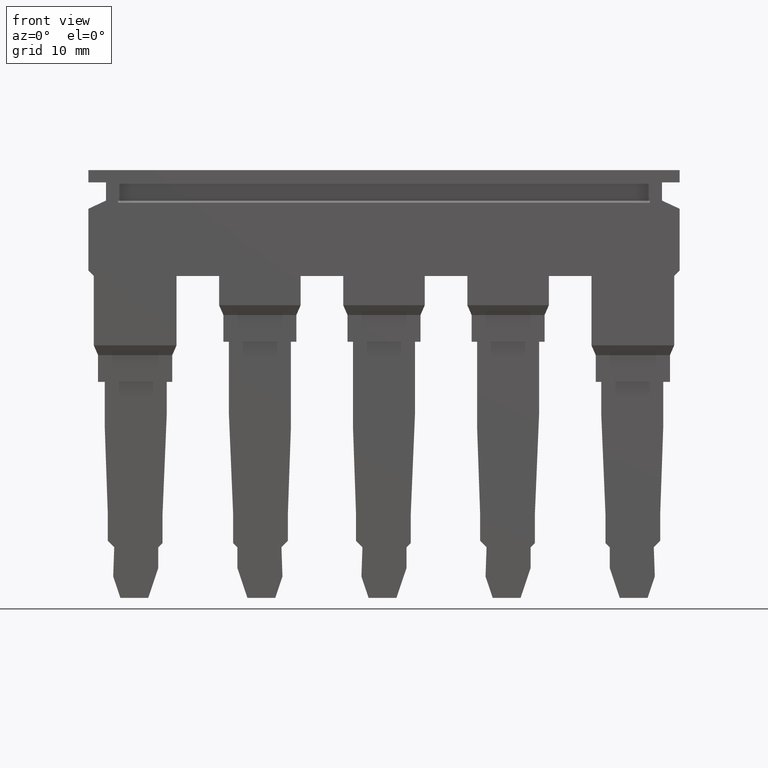
[diagram: clean part render]
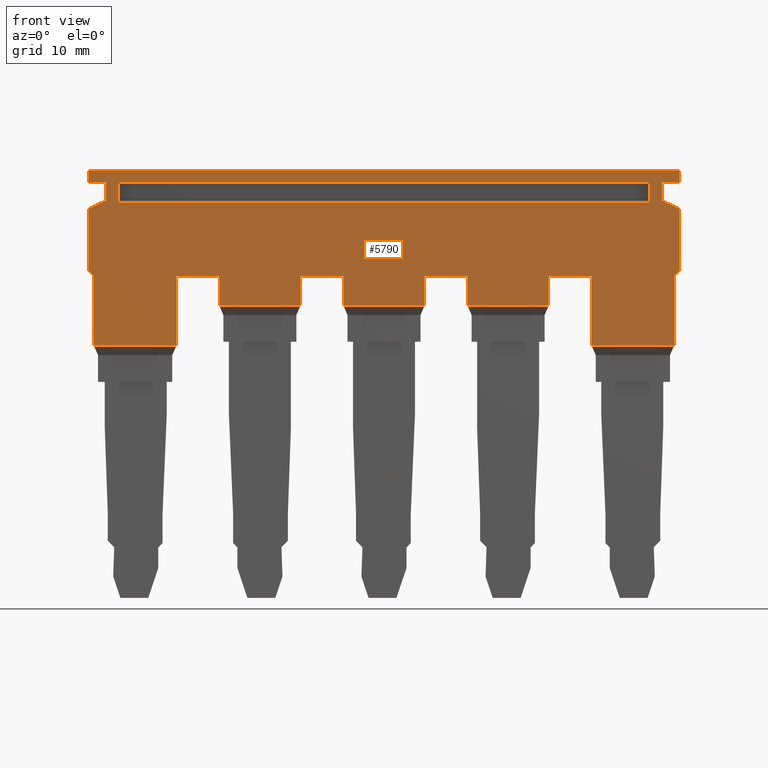
[diagram: same view with one face highlighted and labeled with its STEP entity id]
A machine part, front view. The second image highlights one B-rep face of the part: STEP entity #5790.
In plain terms, the highlighted planar face has unit normal (-0, -1, 0).
Its self-contained STEP definition (entity closure, byte-faithful):
#2940=CARTESIAN_POINT('',(-6.40000000031967,24.5659443926166,
4.25737639386843));
#2950=DIRECTION('',(-1.,1.74939901767895E-11,-1.11022302460423E-16));
#2960=DIRECTION('',(-1.74939901767895E-11,-1.,-9.71111534323598E-28));
#2970=AXIS2_PLACEMENT_3D('',#2940,#2950,#2960);
#2980=PLANE('',#2970);
#2990=CARTESIAN_POINT('',(-6.40000000005842,39.4999997693668,9.075));
#3000=DIRECTION('',(1.74939901767895E-11,1.,-6.12323399603084E-17));
#3010=VECTOR('',#3000,1.);
#3020=LINE('',#2990,#3010);
#3030=CARTESIAN_POINT('',(-6.40000000006716,38.9999997693944,9.075));
#3040=VERTEX_POINT('',#3030);
#3050=CARTESIAN_POINT('',(-6.40000000004967,39.9999997693944,9.075));
#3060=VERTEX_POINT('',#3050);
#3070=EDGE_CURVE('',#3040,#3060,#3020,.T.);
#3080=ORIENTED_EDGE('',*,*,#3070,.T.);
#3090=CARTESIAN_POINT('',(-6.40000000006716,38.9999997693944,-15.225));
#3100=DIRECTION('',(-1.11022302459352E-16,6.12323399568821E-17,1.));
#3110=VECTOR('',#3100,1.);
#3120=LINE('',#3090,#3110);
#3130=CARTESIAN_POINT('',(-6.40000000006716,38.9999997693944,7.625));
#3140=VERTEX_POINT('',#3130);
#3150=EDGE_CURVE('',#3140,#3040,#3120,.T.);
#3160=ORIENTED_EDGE('',*,*,#3150,.T.);
#3170=CARTESIAN_POINT('',(-6.40000000005842,39.4999997693668,7.625));
#3180=DIRECTION('',(1.74939901767895E-11,1.,-6.12323399603084E-17));
#3190=VECTOR('',#3180,1.);
#3200=LINE('',#3170,#3190);
#3210=CARTESIAN_POINT('',(-6.4000000000934,37.4999997693944,7.625));
#3220=VERTEX_POINT('',#3210);
#3230=EDGE_CURVE('',#3220,#3140,#3200,.T.);
#3240=ORIENTED_EDGE('',*,*,#3230,.T.);
#3250=CARTESIAN_POINT('',(-6.399999999907,48.1551297582362,-15.225));
#3260=DIRECTION('',(7.39339145461315E-12,0.422618261740701,
-0.906307787036649));
#3270=VECTOR('',#3260,1.);
#3280=LINE('',#3250,#3270);
#3290=CARTESIAN_POINT('',(-6.40000000010523,36.8238536650696,9.075));
#3300=VERTEX_POINT('',#3290);
#3310=EDGE_CURVE('',#3300,#3220,#3280,.T.);
#3320=ORIENTED_EDGE('',*,*,#3310,.T.);
#3330=CARTESIAN_POINT('',(-6.40000000005842,39.4999997693668,9.075));
#3340=DIRECTION('',(1.74939901767895E-11,1.,-6.12323399603084E-17));
#3350=VECTOR('',#3340,1.);
#3360=LINE('',#3330,#3350);
#3370=CARTESIAN_POINT('',(-6.40000000019399,31.7499997693944,
9.07499999999999));
#3380=VERTEX_POINT('',#3370);
#3390=EDGE_CURVE('',#3380,#3300,#3360,.T.);
#3400=ORIENTED_EDGE('',*,*,#3390,.T.);
#3410=CARTESIAN_POINT('',(-6.40000000005842,39.4999997693668,
16.8249999999724));
#3420=DIRECTION('',(1.23700494292223E-11,0.707106781186549,
0.707106781186546));
#3430=VECTOR('',#3420,1.);
#3440=LINE('',#3410,#3430);
#3450=CARTESIAN_POINT('',(-6.40000000020187,31.2999997693944,8.625));
#3460=VERTEX_POINT('',#3450);
#3470=EDGE_CURVE('',#3460,#3380,#3440,.T.);
#3480=ORIENTED_EDGE('',*,*,#3470,.T.);
#3490=CARTESIAN_POINT('',(-6.40000000005842,39.4999997693668,8.625));
#3500=DIRECTION('',(1.74939901767895E-11,1.,6.12323399538461E-17));
#3510=VECTOR('',#3500,1.);
#3520=LINE('',#3490,#3510);
#3530=CARTESIAN_POINT('',(-6.40000000030158,25.5999997693687,
8.62499999999999));
#3540=VERTEX_POINT('',#3530);
#3550=EDGE_CURVE('',#3540,#3460,#3520,.T.);
#3560=ORIENTED_EDGE('',*,*,#3550,.T.);
#3570=CARTESIAN_POINT('',(-6.40000000030158,25.5999997693687,-15.225));
#3580=DIRECTION('',(1.11022302463637E-16,1.83697019867818E-16,-1.));
#3590=VECTOR('',#3580,1.);
#3600=LINE('',#3570,#3590);
#3610=CARTESIAN_POINT('',(-6.40000000030158,25.5999997693687,1.825));
#3620=VERTEX_POINT('',#3610);
#3630=EDGE_CURVE('',#3540,#3620,#3600,.T.);
#3640=ORIENTED_EDGE('',*,*,#3630,.F.);
#3650=CARTESIAN_POINT('',(-6.40000000005841,39.4999997693668,1.825));
#3660=DIRECTION('',(-1.74939901767895E-11,-1.,-6.12323399538461E-17));
#3670=VECTOR('',#3660,1.);
#3680=LINE('',#3650,#3670);
#3690=CARTESIAN_POINT('',(-6.40000000020186,31.2999997693821,1.825));
#3700=VERTEX_POINT('',#3690);
#3710=EDGE_CURVE('',#3700,#3620,#3680,.T.);
#3720=ORIENTED_EDGE('',*,*,#3710,.T.);
#3730=CARTESIAN_POINT('',(-6.40000000020186,31.2999997693821,-15.225));
#3740=DIRECTION('',(-1.11022302461495E-16,-6.12323399571249E-17,1.));
#3750=VECTOR('',#3740,1.);
#3760=LINE('',#3730,#3750);
#3770=CARTESIAN_POINT('',(-6.40000000020186,31.2999997693821,-1.675));
#3780=VERTEX_POINT('',#3770);
#3790=EDGE_CURVE('',#3780,#3700,#3760,.T.);
#3800=ORIENTED_EDGE('',*,*,#3790,.T.);
#3810=CARTESIAN_POINT('',(-6.40000000005841,39.4999997693668,-1.675));
#3820=DIRECTION('',(1.74939901767895E-11,1.,6.12323399570773E-17));
#3830=VECTOR('',#3820,1.);
#3840=LINE('',#3810,#3830);
#3850=CARTESIAN_POINT('',(-6.40000000024385,28.8999997692532,-1.675));
#3860=VERTEX_POINT('',#3850);
#3870=EDGE_CURVE('',#3860,#3780,#3840,.T.);
#3880=ORIENTED_EDGE('',*,*,#3870,.T.);
#3890=CARTESIAN_POINT('',(-6.40000000024385,28.8999997692532,-15.225));
#3900=DIRECTION('',(-1.11022302463637E-16,-1.83697019867818E-16,1.));
#3910=VECTOR('',#3900,1.);
#3920=LINE('',#3890,#3910);
#3930=CARTESIAN_POINT('',(-6.40000000024385,28.8999997692532,
-8.37499999999983));
#3940=VERTEX_POINT('',#3930);
#3950=EDGE_CURVE('',#3940,#3860,#3920,.T.);
#3960=ORIENTED_EDGE('',*,*,#3950,.T.);
#3970=CARTESIAN_POINT('',(-6.40000000005841,39.4999997693668,
-8.37499999999983));
#3980=DIRECTION('',(-1.74939901767895E-11,-1.,-6.12323399538461E-17));
#3990=VECTOR('',#3980,1.);
#4000=LINE('',#3970,#3990);
#4010=CARTESIAN_POINT('',(-6.40000000020186,31.2999997693821,
-8.37499999999983));
#4020=VERTEX_POINT('',#4010);
#4030=EDGE_CURVE('',#4020,#3940,#4000,.T.);
#4040=ORIENTED_EDGE('',*,*,#4030,.T.);
#4050=CARTESIAN_POINT('',(-6.40000000020186,31.2999997693821,-15.225));
#4060=DIRECTION('',(-1.11022302461495E-16,-6.12323399571249E-17,1.));
#4070=VECTOR('',#4060,1.);
#4080=LINE('',#4050,#4070);
#4090=CARTESIAN_POINT('',(-6.40000000020186,31.2999997693821,-11.875));
#4100=VERTEX_POINT('',#4090);
#4110=EDGE_CURVE('',#4100,#4020,#4080,.T.);
#4120=ORIENTED_EDGE('',*,*,#4110,.T.);
#4130=CARTESIAN_POINT('',(-6.40000000005841,39.4999997693668,-11.875));
#4140=DIRECTION('',(1.74939901767895E-11,1.,6.12323399570773E-17));
#4150=VECTOR('',#4140,1.);
#4160=LINE('',#4130,#4150);
#4170=CARTESIAN_POINT('',(-6.40000000024385,28.8999997692532,-11.875));
#4180=VERTEX_POINT('',#4170);
#4190=EDGE_CURVE('',#4180,#4100,#4160,.T.);
#4200=ORIENTED_EDGE('',*,*,#4190,.T.);
#4210=CARTESIAN_POINT('',(-6.40000000024385,28.8999997692532,
-18.5749999999998));
#4220=VERTEX_POINT('',#4210);
#4230=EDGE_CURVE('',#4220,#4180,#3920,.T.);
#4240=ORIENTED_EDGE('',*,*,#4230,.T.);
#4250=CARTESIAN_POINT('',(-6.40000000005841,39.4999997693668,
-18.5749999999998));
#4260=DIRECTION('',(-1.74939901767895E-11,-1.,-6.12323399538461E-17));
#4270=VECTOR('',#4260,1.);
#4280=LINE('',#4250,#4270);
#4290=CARTESIAN_POINT('',(-6.40000000020186,31.2999997693821,
-18.5749999999998));
#4300=VERTEX_POINT('',#4290);
#4310=EDGE_CURVE('',#4300,#4220,#4280,.T.);
#4320=ORIENTED_EDGE('',*,*,#4310,.T.);
#4330=CARTESIAN_POINT('',(-6.40000000020186,31.2999997693821,-15.225));
#4340=DIRECTION('',(-1.11022302461495E-16,-6.12323399571249E-17,1.));
#4350=VECTOR('',#4340,1.);
#4360=LINE('',#4330,#4350);
#4370=CARTESIAN_POINT('',(-6.40000000020186,31.2999997693821,-22.075));
#4380=VERTEX_POINT('',#4370);
#4390=EDGE_CURVE('',#4380,#4300,#4360,.T.);
#4400=ORIENTED_EDGE('',*,*,#4390,.T.);
#4410=CARTESIAN_POINT('',(-6.40000000005841,39.4999997693668,-22.075));
#4420=DIRECTION('',(1.74939901767895E-11,1.,6.12323399570773E-17));
#4430=VECTOR('',#4420,1.);
#4440=LINE('',#4410,#4430);
#4450=CARTESIAN_POINT('',(-6.40000000024385,28.8999997692532,-22.075));
#4460=VERTEX_POINT('',#4450);
#4470=EDGE_CURVE('',#4460,#4380,#4440,.T.);
#4480=ORIENTED_EDGE('',*,*,#4470,.T.);
#4490=CARTESIAN_POINT('',(-6.40000000029157,28.8999997693486,
-28.7749999999911));
#4500=VERTEX_POINT('',#4490);
#4510=EDGE_CURVE('',#4500,#4460,#3920,.T.);
#4520=ORIENTED_EDGE('',*,*,#4510,.T.);
#4530=CARTESIAN_POINT('',(-6.40000000005841,39.4999997693668,
-28.7749999999998));
#4540=DIRECTION('',(-1.74939901767895E-11,-1.,-6.12323399538461E-17));
#4550=VECTOR('',#4540,1.);
#4560=LINE('',#4530,#4550);
#4570=CARTESIAN_POINT('',(-6.40000000020186,31.2999997693822,
-28.7749999999998));
#4580=VERTEX_POINT('',#4570);
#4590=EDGE_CURVE('',#4580,#4500,#4560,.T.);
#4600=ORIENTED_EDGE('',*,*,#4590,.T.);
#4610=CARTESIAN_POINT('',(-6.40000000020186,31.2999997693822,-15.225));
#4620=DIRECTION('',(-1.11022302461495E-16,-6.12323399571249E-17,1.));
#4630=VECTOR('',#4620,1.);
#4640=LINE('',#4610,#4630);
#4650=CARTESIAN_POINT('',(-6.40000000020186,31.2999997693822,-32.275));
#4660=VERTEX_POINT('',#4650);
#4670=EDGE_CURVE('',#4660,#4580,#4640,.T.);
#4680=ORIENTED_EDGE('',*,*,#4670,.T.);
#4690=CARTESIAN_POINT('',(-6.40000000005841,39.4999997693668,-32.275));
#4700=DIRECTION('',(1.74939901767895E-11,1.,6.12323399570773E-17));
#4710=VECTOR('',#4700,1.);
#4720=LINE('',#4690,#4710);
#4730=CARTESIAN_POINT('',(-6.40000000030158,25.5999997693687,-32.275));
#4740=VERTEX_POINT('',#4730);
#4750=EDGE_CURVE('',#4740,#4660,#4720,.T.);
#4760=ORIENTED_EDGE('',*,*,#4750,.T.);
#4770=CARTESIAN_POINT('',(-6.40000000030158,25.5999997693687,-39.075));
#4780=VERTEX_POINT('',#4770);
#4790=EDGE_CURVE('',#4740,#4780,#3600,.T.);
#4800=ORIENTED_EDGE('',*,*,#4790,.F.);
#4810=CARTESIAN_POINT('',(-6.40000000005841,39.4999997693668,-39.075));
#4820=DIRECTION('',(-1.74939901767895E-11,-1.,-6.12323399570773E-17));
#4830=VECTOR('',#4820,1.);
#4840=LINE('',#4810,#4830);
#4850=CARTESIAN_POINT('',(-6.40000000020186,31.2999997693944,-39.075));
#4860=VERTEX_POINT('',#4850);
#4870=EDGE_CURVE('',#4860,#4780,#4840,.T.);
#4880=ORIENTED_EDGE('',*,*,#4870,.T.);
#4890=CARTESIAN_POINT('',(-6.40000000005841,39.4999997693668,
-47.2749999999724));
#4900=DIRECTION('',(-1.23701882071003E-11,-0.707106781186549,
0.707106781186546));
#4910=VECTOR('',#4900,1.);
#4920=LINE('',#4890,#4910);
#4930=CARTESIAN_POINT('',(-6.40000000019399,31.7499997693944,-39.525));
#4940=VERTEX_POINT('',#4930);
#4950=EDGE_CURVE('',#4940,#4860,#4920,.T.);
#4960=ORIENTED_EDGE('',*,*,#4950,.T.);
#4970=CARTESIAN_POINT('',(-6.40000000005841,39.4999997693668,-39.525));
#4980=DIRECTION('',(-1.74939901767895E-11,-1.,-1.83697019871232E-16));
#4990=VECTOR('',#4980,1.);
#5000=LINE('',#4970,#4990);
#5010=CARTESIAN_POINT('',(-6.40000000010523,36.8238536650696,-39.525));
#5020=VERTEX_POINT('',#5010);
#5030=EDGE_CURVE('',#5020,#4940,#5000,.T.);
#5040=ORIENTED_EDGE('',*,*,#5030,.T.);
#5050=CARTESIAN_POINT('',(-6.399999999907,48.1551297582362,-15.225));
#5060=DIRECTION('',(-7.39316941000823E-12,-0.422618261740701,
-0.906307787036649));
#5070=VECTOR('',#5060,1.);
#5080=LINE('',#5050,#5070);
#5090=CARTESIAN_POINT('',(-6.4000000000934,37.4999997693944,-38.075));
#5100=VERTEX_POINT('',#5090);
#5110=EDGE_CURVE('',#5100,#5020,#5080,.T.);
#5120=ORIENTED_EDGE('',*,*,#5110,.T.);
#5130=CARTESIAN_POINT('',(-6.40000000005841,39.4999997693668,-38.075));
#5140=DIRECTION('',(-1.74939901767895E-11,-1.,-1.83697019871232E-16));
#5150=VECTOR('',#5140,1.);
#5160=LINE('',#5130,#5150);
#5170=CARTESIAN_POINT('',(-6.40000000006716,38.9999997693944,-38.075));
#5180=VERTEX_POINT('',#5170);
#5190=EDGE_CURVE('',#5180,#5100,#5160,.T.);
#5200=ORIENTED_EDGE('',*,*,#5190,.T.);
#5210=CARTESIAN_POINT('',(-6.40000000006716,38.9999997693944,-15.225));
#5220=DIRECTION('',(-1.11022302463637E-16,-1.83697019873074E-16,1.));
#5230=VECTOR('',#5220,1.);
#5240=LINE('',#5210,#5230);
#5250=CARTESIAN_POINT('',(-6.40000000006716,38.9999997693944,-39.525));
#5260=VERTEX_POINT('',#5250);
#5270=EDGE_CURVE('',#5260,#5180,#5240,.T.);
#5280=ORIENTED_EDGE('',*,*,#5270,.T.);
#5290=CARTESIAN_POINT('',(-6.40000000005841,39.4999997693668,-39.525));
#5300=DIRECTION('',(-1.74939901767895E-11,-1.,-1.83697019871232E-16));
#5310=VECTOR('',#5300,1.);
#5320=LINE('',#5290,#5310);
#5330=CARTESIAN_POINT('',(-6.40000000004966,39.9999997693944,-39.525));
#5340=VERTEX_POINT('',#5330);
#5350=EDGE_CURVE('',#5340,#5260,#5320,.T.);
#5360=ORIENTED_EDGE('',*,*,#5350,.T.);
#5370=CARTESIAN_POINT('',(-6.40000000004967,39.9999997693944,-15.225));
#5380=DIRECTION('',(-1.11022302461495E-16,-6.12323399583388E-17,1.));
#5390=VECTOR('',#5380,1.);
#5400=LINE('',#5370,#5390);
#5410=EDGE_CURVE('',#5340,#3060,#5400,.T.);
#5420=ORIENTED_EDGE('',*,*,#5410,.F.);
#5430=EDGE_LOOP('',(#5420,#5360,#5280,#5200,#5120,#5040,#4960,#4880,
#4800,#4760,#4680,#4600,#4520,#4480,#4400,#4320,#4240,#4200,#4120,#4040,
#3960,#3880,#3800,#3720,#3640,#3560,#3480,#3400,#3320,#3240,#3160,#3080)
);
#5440=FACE_OUTER_BOUND('',#5430,.T.);
#5450=CARTESIAN_POINT('',(-6.40000000009648,37.3236727896187,-15.225));
#5460=DIRECTION('',(-1.11022356423812E-16,-3.0846751201083E-12,1.));
#5470=VECTOR('',#5460,1.);
#5480=LINE('',#5450,#5470);
#5490=CARTESIAN_POINT('',(-6.40000000009648,37.3236727897008,-37.075));
#5500=VERTEX_POINT('',#5490);
#5510=CARTESIAN_POINT('',(-6.40000000009649,37.3236727897008,6.625));
#5520=VERTEX_POINT('',#5510);
#5530=EDGE_CURVE('',#5500,#5520,#5480,.T.);
#5540=ORIENTED_EDGE('',*,*,#5530,.F.);
#5550=CARTESIAN_POINT('',(-6.40000000005841,39.4999997693668,6.625));
#5560=DIRECTION('',(-1.74939901767895E-11,-1.,2.42677618056059E-16));
#5570=VECTOR('',#5560,1.);
#5580=LINE('',#5550,#5570);
#5590=CARTESIAN_POINT('',(-6.40000000006716,38.9999997704142,6.625));
#5600=VERTEX_POINT('',#5590);
#5610=EDGE_CURVE('',#5600,#5520,#5580,.T.);
#5620=ORIENTED_EDGE('',*,*,#5610,.T.);
#5630=CARTESIAN_POINT('',(-6.40000000006716,38.9999997704142,-15.225));
#5640=DIRECTION('',(1.11022302460463E-16,2.25174177464177E-18,-1.));
#5650=VECTOR('',#5640,1.);
#5660=LINE('',#5630,#5650);
#5670=CARTESIAN_POINT('',(-6.40000000006716,38.9999997704142,-37.075));
#5680=VERTEX_POINT('',#5670);
#5690=EDGE_CURVE('',#5600,#5680,#5660,.T.);
#5700=ORIENTED_EDGE('',*,*,#5690,.F.);
#5710=CARTESIAN_POINT('',(-6.40000000005841,39.4999997693668,-37.075));
#5720=DIRECTION('',(1.74939901767895E-11,1.,2.25174177548142E-18));
#5730=VECTOR('',#5720,1.);
#5740=LINE('',#5710,#5730);
#5750=EDGE_CURVE('',#5500,#5680,#5740,.T.);
#5760=ORIENTED_EDGE('',*,*,#5750,.T.);
#5770=EDGE_LOOP('',(#5760,#5700,#5620,#5540));
#5780=FACE_BOUND('',#5770,.T.);
#5790=ADVANCED_FACE('',(#5440,#5780),#2980,.T.);